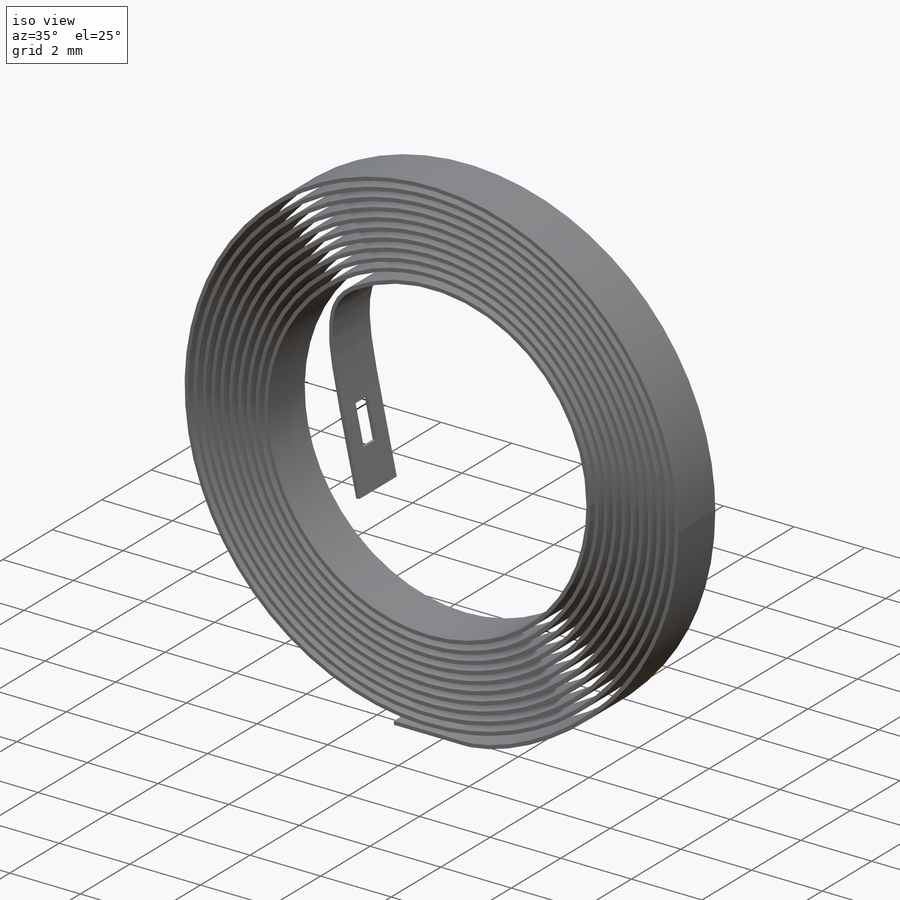
[diagram: iso view]
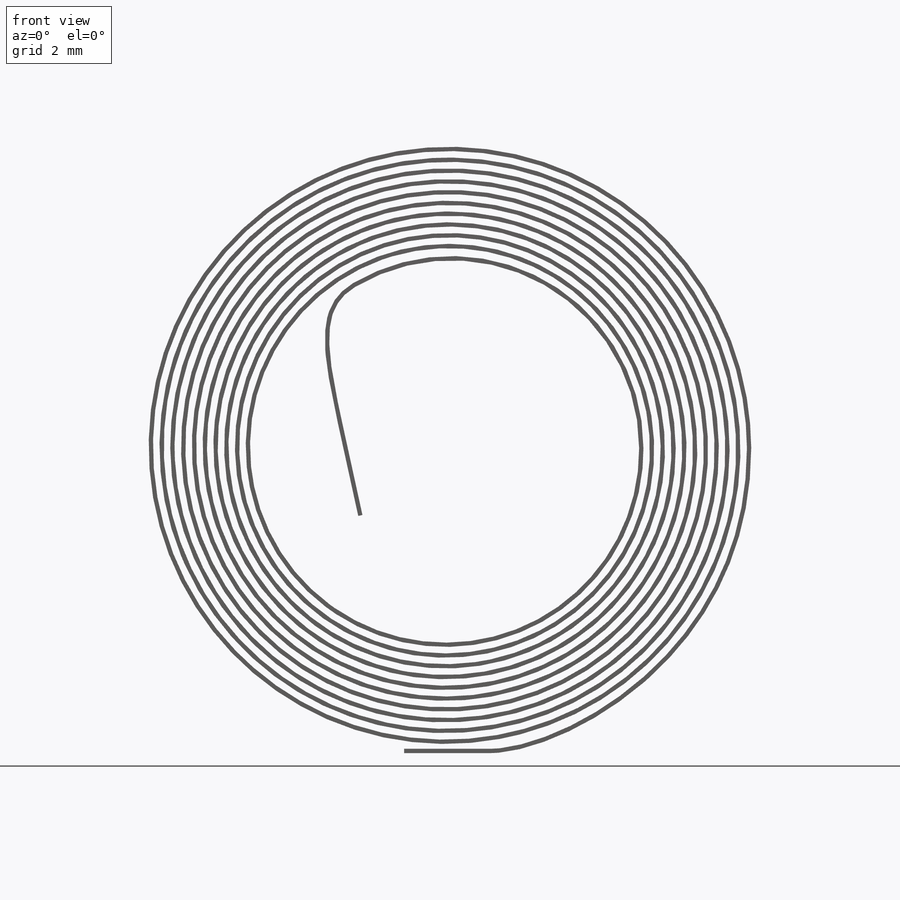
[diagram: front view]
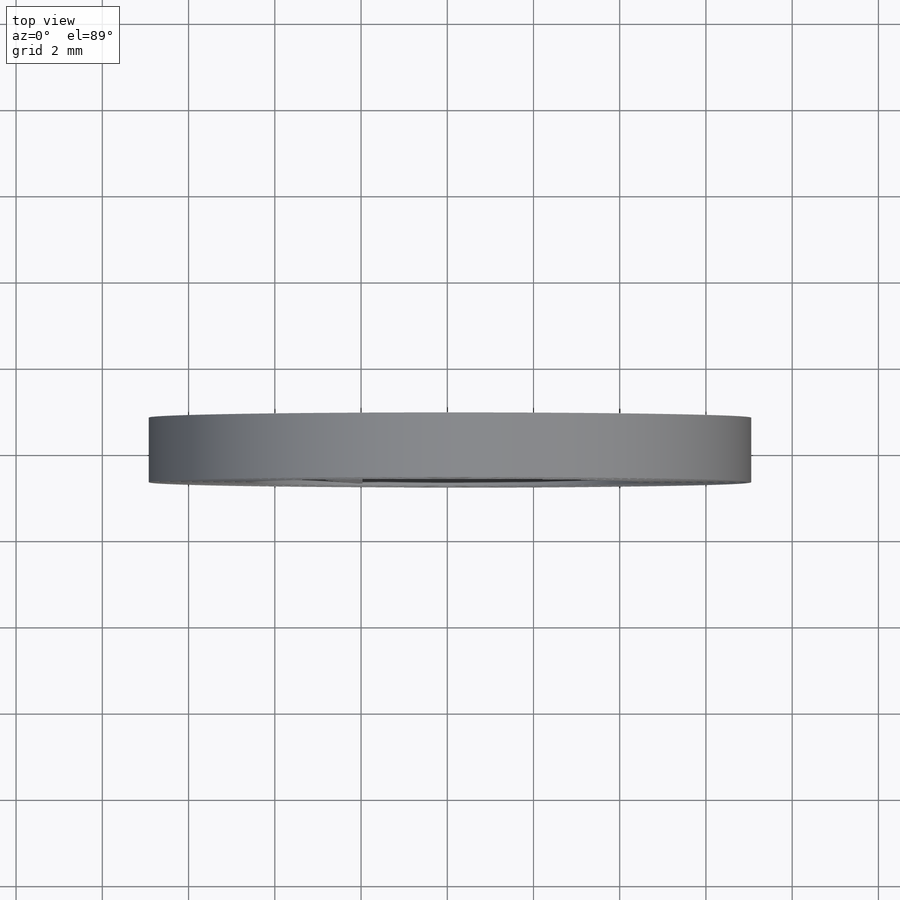
[diagram: top view]
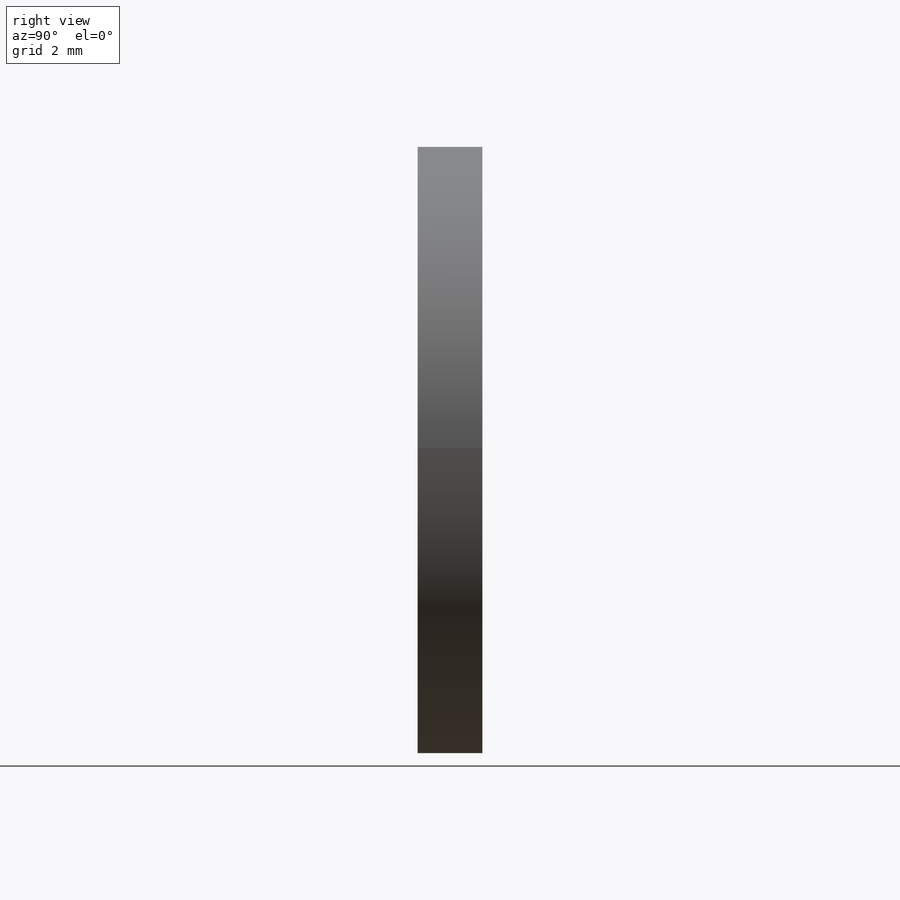
[diagram: right view]
SOLIDWORKS PART (.sldprt)
format: sldprt  version: not decoded by parser v0  size: 1,360,896 bytes
history: native  units: mm
features: sketch x7, plane x3, sweep x3, material x1, helix x1, cut_extrude x1 (+8 scaffold rows collapsed)
feature tree (24):
  scaffold x8  (default folders/planes/origin — collapsed)
  material  "Material <sin especificar>"
  plane  "Alzado"
  plane  "Planta"
  plane  "Vista lateral"
  sketch  "Croquis1"  dims[D1=9.0mm]
  helix  "Hélice/Espiral1"  Pitch=0.25mm
  sketch  "Croquis2"  dims[D1=7.05mm D2=6.95mm D3=1.5mm]
  sweep  "Barrer1"
  sketch  "Croquis3"  dims[c1.D1=5.0mm c1.D6=~4.283664mm c1.D5=~4.500036mm c2.D6=~2.965151mm c2.D2=2.25mm c2.D3=0.05mm c2.D4=2.5mm c2.D5=0.35mm c3.D4=2.0mm c3.D5=0.15mm c4.D4=0.75mm c4.D6=~4.234515mm c5.D4=1.0mm c5.D5=5.25mm c5.D6=~2.192488mm]
  sketch  "Croquis4"
  sweep  "Barrer2"
  sketch  "Croquis5"  dims[c1.D1=0.5mm c1.D2=0.25mm c1.D3=1.0mm c1.D4=0.5mm c2.D2=0.5mm c2.D3=0.5mm c3.D2=~1.086594mm]
  cut_extrude  "Cortar-Extruir1"  [1 undecoded]
  sketch  "Croquis8"  dims[D1=7.025mm D2=2.0mm]
  sketch  "Croquis9"
  sweep  "Barrer3"
decode coverage: 6 of 12 modeling features carry decoded parameters
note: ~ marks probable driven/reference dimensions
note: 1 parameter value undecoded
note: suppression state not decoded; provenance and decode notes live in map.json
